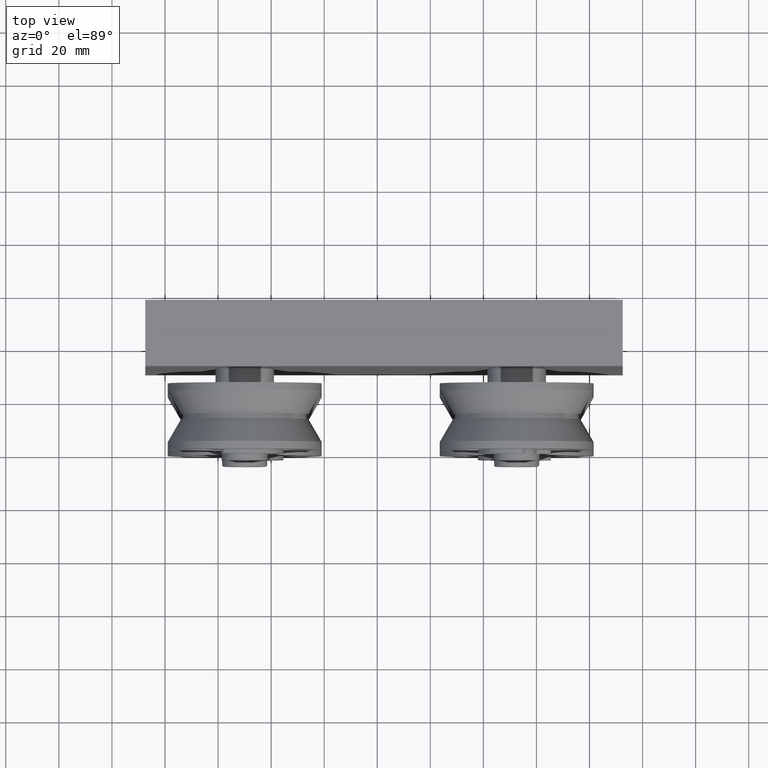
[diagram: clean part render]
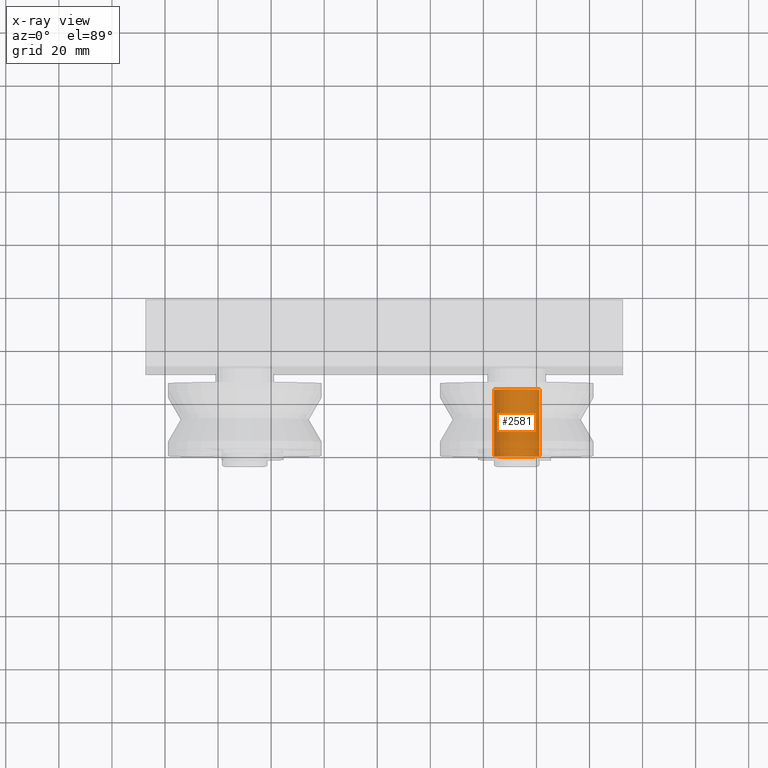
[diagram: x-ray — body ghosted, one internal face saturated and labeled with its STEP entity id]
A machine part, top view, then the same camera in x-ray: the body is ghosted and one INTERNAL B-rep face — a face not visible from any outside direction — is saturated and labeled: STEP entity #2581.
In plain terms, the highlighted cylindrical surface (bore or boss wall) has radius 8.5 mm, axis along (-0, 1, 0).
Its self-contained STEP definition (entity closure, byte-faithful):
#290=LINE('',#4521,#489);
#489=VECTOR('',#3748,8.5);
#566=CYLINDRICAL_SURFACE('',#3048,8.5);
#736=FACE_OUTER_BOUND('',#928,.T.);
#928=EDGE_LOOP('',(#2166,#2167,#2168,#2169));
#1050=CIRCLE('',#3015,8.5);
#1066=CIRCLE('',#3047,8.5);
#1245=VERTEX_POINT('',#4461);
#1261=VERTEX_POINT('',#4518);
#1547=EDGE_CURVE('',#1245,#1245,#1050,.T.);
#1572=EDGE_CURVE('',#1261,#1261,#1066,.T.);
#1573=EDGE_CURVE('',#1261,#1245,#290,.T.);
#2166=ORIENTED_EDGE('',*,*,#1572,.T.);
#2167=ORIENTED_EDGE('',*,*,#1573,.T.);
#2168=ORIENTED_EDGE('',*,*,#1547,.F.);
#2169=ORIENTED_EDGE('',*,*,#1573,.F.);
#2581=ADVANCED_FACE('',(#736),#566,.F.);
#3015=AXIS2_PLACEMENT_3D('',#4462,#3671,#3672);
#3047=AXIS2_PLACEMENT_3D('',#4519,#3744,#3745);
#3048=AXIS2_PLACEMENT_3D('',#4520,#3746,#3747);
#3671=DIRECTION('center_axis',(1.,0.,0.));
#3672=DIRECTION('ref_axis',(0.,1.,0.));
#3744=DIRECTION('center_axis',(1.,0.,0.));
#3745=DIRECTION('ref_axis',(0.,1.,0.));
#3746=DIRECTION('center_axis',(1.,0.,0.));
#3747=DIRECTION('ref_axis',(0.,1.,0.));
#3748=DIRECTION('',(-1.,0.,0.));
#4461=CARTESIAN_POINT('',(-12.5,-8.5,-1.04094977927525E-15));
#4462=CARTESIAN_POINT('Origin',(-12.5,0.,0.));
#4518=CARTESIAN_POINT('',(12.5,-8.5,-1.04094977927525E-15));
#4519=CARTESIAN_POINT('Origin',(12.5,0.,0.));
#4520=CARTESIAN_POINT('Origin',(0.,0.,0.));
#4521=CARTESIAN_POINT('',(0.,-8.5,-1.04094977927525E-15));